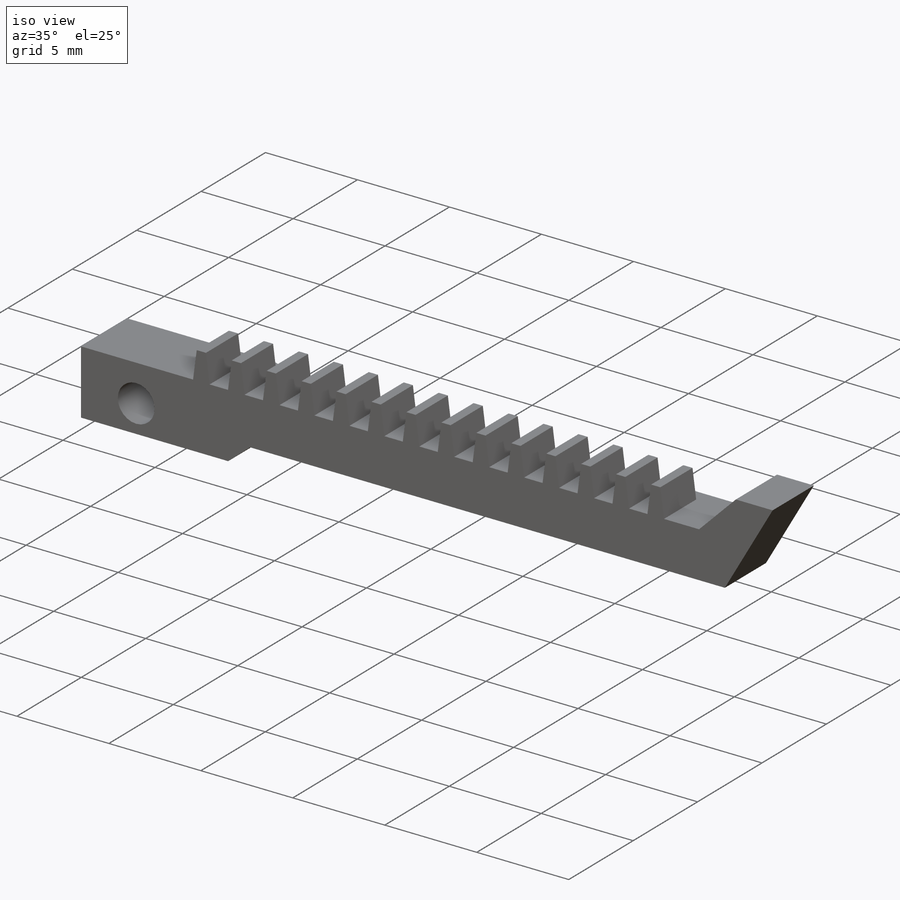
[diagram: iso view]
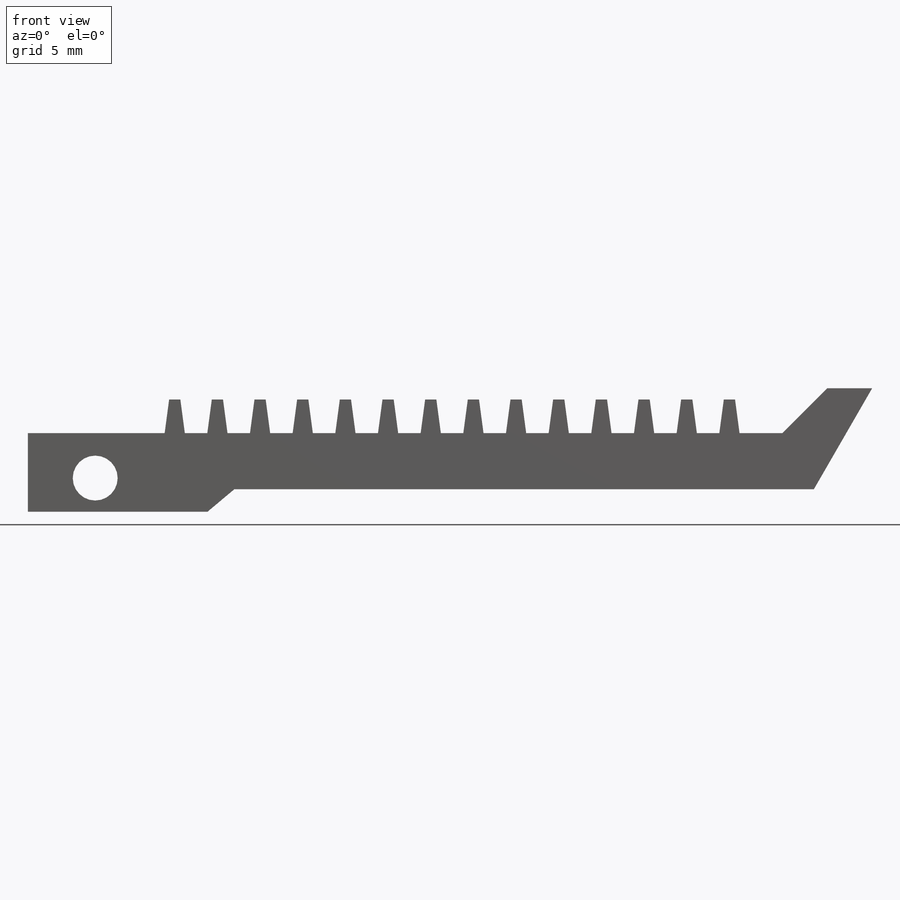
[diagram: front view]
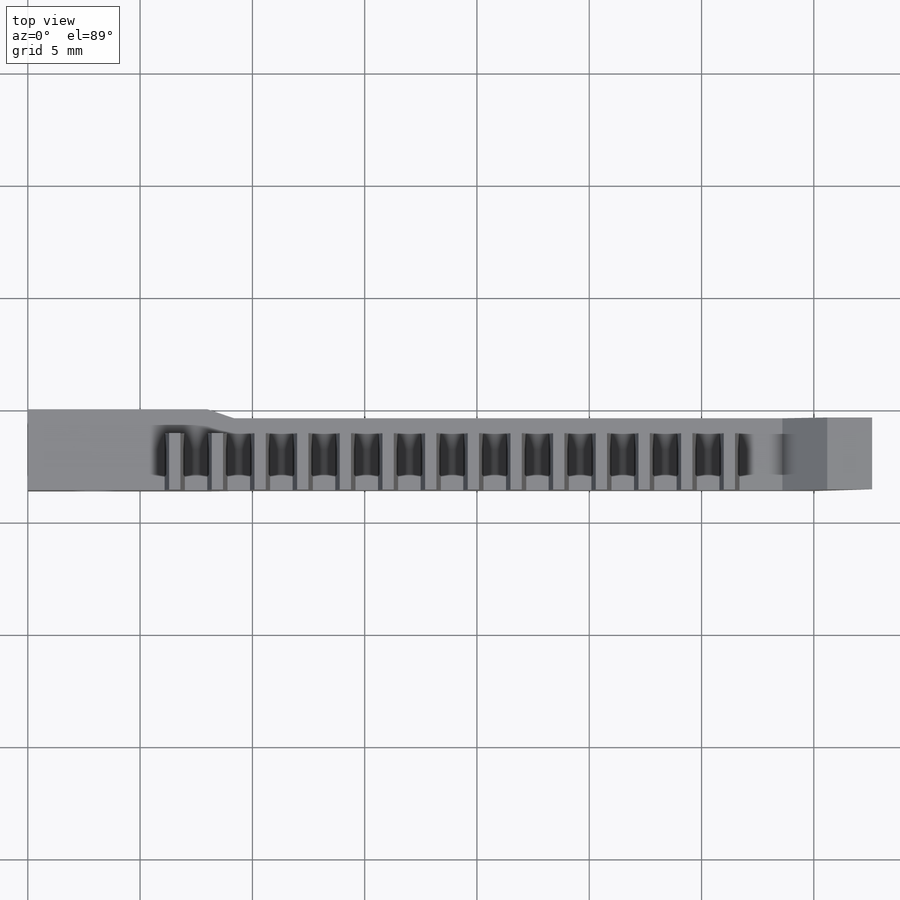
[diagram: top view]
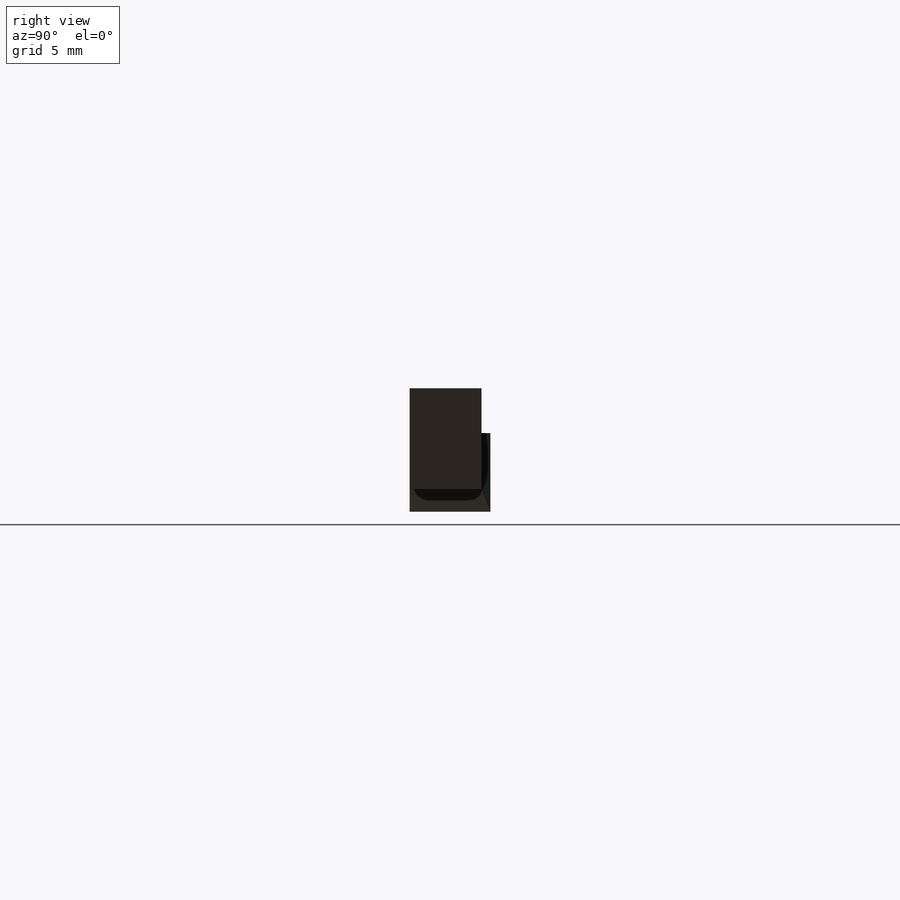
[diagram: right view]
SOLIDWORKS PART (.sldprt)
format: sldprt  version: not decoded by parser v0  size: 296,448 bytes
history: native  units: mm
features: sketch x5, plane x3, extrude x2, cut_extrude x2, material x1, pattern_linear x1 (+10 scaffold rows collapsed)
feature tree (24):
  scaffold x10  (default folders/planes/origin — collapsed)
  material  "uhlíková ocel 7850"
  plane  "Přední rovina"
  plane  "Horní rovina"
  plane  "Pravá rovina"
  sketch  "Skica1"  dims[c1.D1=8.0mm c1.D2=3.0mm c1.D3=35.0mm c1.D4=0.5mm c1.D5=0.5mm c2.D5=140.0deg c2.D6=~4.632787mm c3.D6=60.0deg c3.D7=2.0mm c3.D8=4.5mm c3.D9=~2.818825mm c4.D9=15.0deg]
  extrude  "Přidat vysunutím1"  Depth=3.6mm
  sketch  "Skica2"  dims[D1=0.4mm]
  cut_extrude  "Odebrat vysunutím1"  Depth=4.2mm
  sketch  "Skica3"  dims[D1=0.9mm D2=1.5mm D3=0.5mm D4=0.7mm]
  extrude  "Přidat vysunutím2"  Depth=2.5mm
  pattern_linear  "LinPole1"  Count1=12 Count2=3 Spacing1=1.9mm Spacing2=1.9mm
  sketch  "Skica4"  dims[D1=2.0mm D2=1.5mm D3=3.0mm]
  sketch  "Skica5"  dims[D1=1.9mm]
  cut_extrude  "Odebrat vysunutím2"  Depth=5mm
decode coverage: 10 of 10 modeling features carry decoded parameters
note: ~ marks probable driven/reference dimensions
note: suppression state not decoded; provenance and decode notes live in map.json
